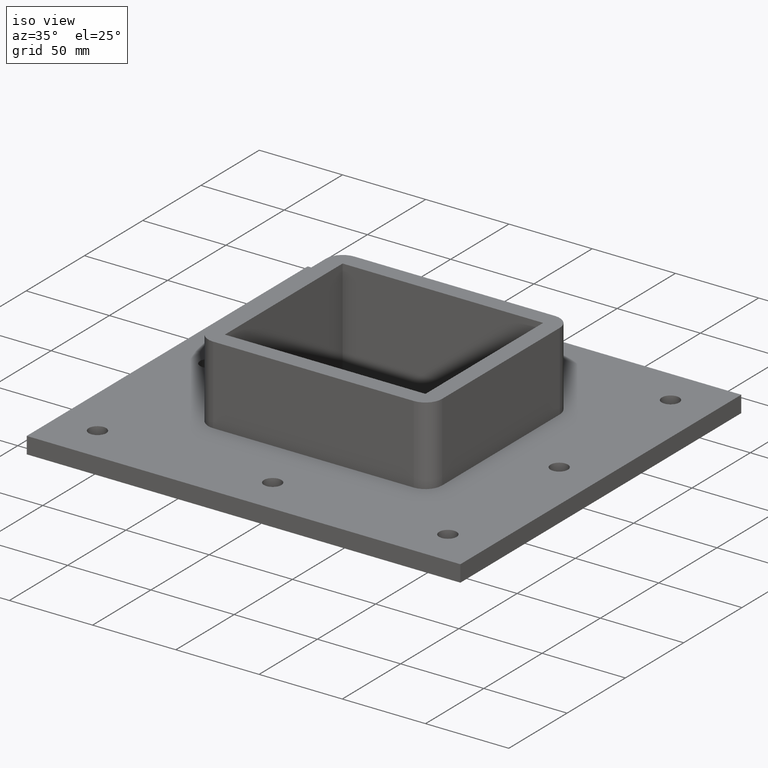
[diagram: clean part render]
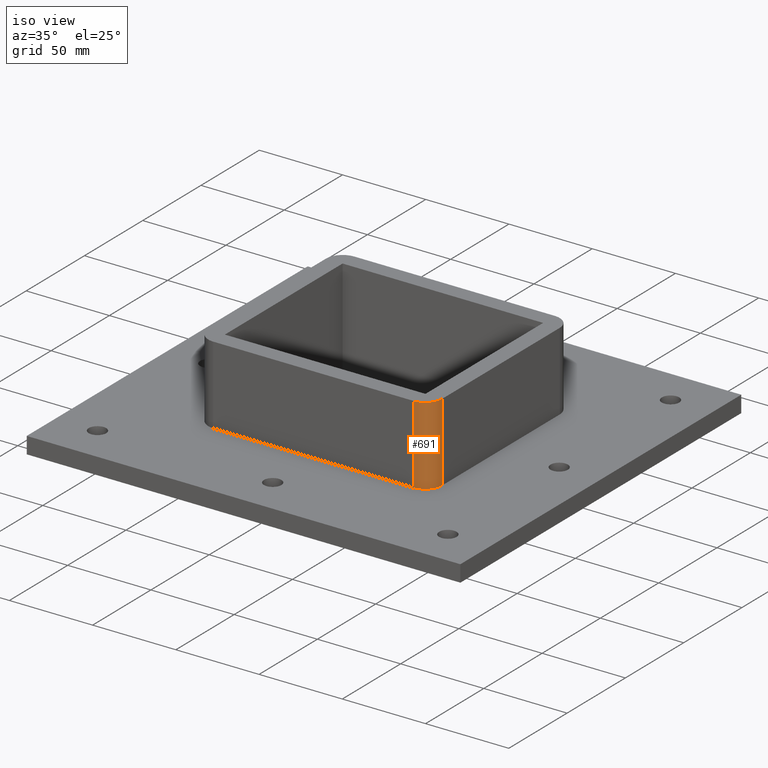
[diagram: same view with one face highlighted and labeled with its STEP entity id]
A machine part, iso view. The second image highlights one B-rep face of the part: STEP entity #691.
In plain terms, the highlighted cylindrical surface (edge-blend (fillet) strip) has radius 10 mm, axis along (0, 0, 1).
Its self-contained STEP definition (entity closure, byte-faithful):
#462=CARTESIAN_POINT('',(70.250000000000028,-50.500000000000007,-17.0));
#463=VERTEX_POINT('',#462);
#470=CARTESIAN_POINT('',(60.250000000000021,-60.499999999999972,-17.0));
#471=VERTEX_POINT('',#470);
#472=CARTESIAN_POINT('',(60.249999999999993,-50.499999999999972,-17.0));
#473=DIRECTION('',(0.0,0.0,1.0));
#474=DIRECTION('',(0.707106781186547,-0.707106781186547,0.0));
#475=AXIS2_PLACEMENT_3D('',#472,#473,#474);
#476=CIRCLE('',#475,9.999999999999998);
#477=EDGE_CURVE('',#471,#463,#476,.T.);
#660=CARTESIAN_POINT('',(60.249999999999993,-50.499999999999972,0.0));
#661=DIRECTION('',(0.0,0.0,1.0));
#662=DIRECTION('',(0.707106781186547,-0.707106781186547,0.0));
#663=AXIS2_PLACEMENT_3D('',#660,#661,#662);
#664=CYLINDRICAL_SURFACE('',#663,10.0);
#665=ORIENTED_EDGE('',*,*,#477,.T.);
#666=CARTESIAN_POINT('',(70.25,-50.499999999999972,30.0));
#667=VERTEX_POINT('',#666);
#668=CARTESIAN_POINT('',(70.25,-50.499999999999972,-17.0));
#669=DIRECTION('',(0.0,0.0,1.0));
#670=VECTOR('',#669,47.0);
#671=LINE('',#668,#670);
#672=EDGE_CURVE('',#463,#667,#671,.T.);
#673=ORIENTED_EDGE('',*,*,#672,.T.);
#674=CARTESIAN_POINT('',(60.249999999999993,-60.499999999999972,30.0));
#675=VERTEX_POINT('',#674);
#676=CARTESIAN_POINT('',(60.249999999999993,-50.499999999999972,30.0));
#677=DIRECTION('',(0.0,0.0,-1.0));
#678=DIRECTION('',(0.707106781186547,-0.707106781186547,0.0));
#679=AXIS2_PLACEMENT_3D('',#676,#677,#678);
#680=CIRCLE('',#679,9.999999999999998);
#681=EDGE_CURVE('',#667,#675,#680,.T.);
#682=ORIENTED_EDGE('',*,*,#681,.T.);
#683=CARTESIAN_POINT('',(60.249999999999993,-60.499999999999972,30.0));
#684=DIRECTION('',(0.0,0.0,-1.0));
#685=VECTOR('',#684,47.0);
#686=LINE('',#683,#685);
#687=EDGE_CURVE('',#675,#471,#686,.T.);
#688=ORIENTED_EDGE('',*,*,#687,.T.);
#689=EDGE_LOOP('',(#665,#673,#682,#688));
#690=FACE_OUTER_BOUND('',#689,.T.);
#691=ADVANCED_FACE('',(#690),#664,.T.);